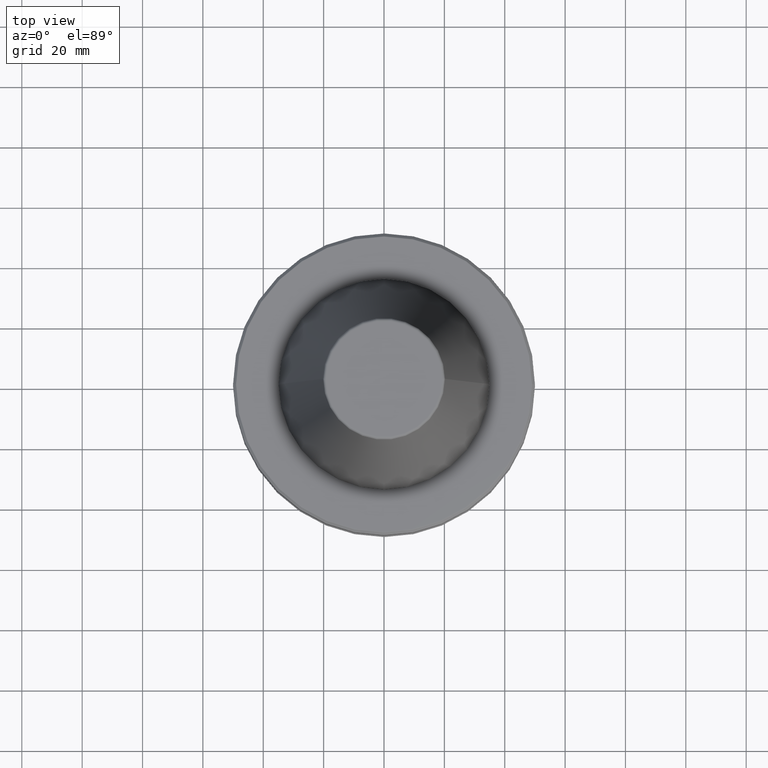
[diagram: clean part render]
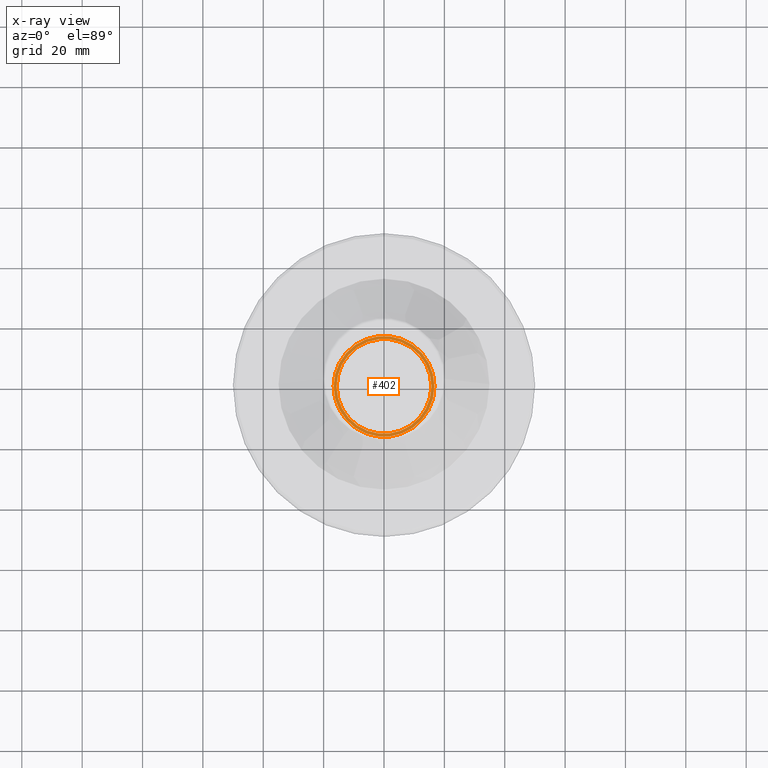
[diagram: x-ray — body ghosted, one internal face saturated and labeled with its STEP entity id]
A machine part, top view, then the same camera in x-ray: the body is ghosted and one INTERNAL B-rep face — a face not visible from any outside direction — is saturated and labeled: STEP entity #402.
In plain terms, the highlighted planar face has unit normal (0, 0, 1).
Its self-contained STEP definition (entity closure, byte-faithful):
#40 = DIRECTION ( 'NONE',  ( -0.0000000000000000000, -0.0000000000000000000, -1.000000000000000000 ) ) ;
#42 = CIRCLE ( 'NONE', #872, 15.69999999999982500 ) ;
#99 = VERTEX_POINT ( 'NONE', #1537 ) ;
#141 = DIRECTION ( 'NONE',  ( -0.0000000000000000000, -0.0000000000000000000, -1.000000000000000000 ) ) ;
#157 = DIRECTION ( 'NONE',  ( 1.000000000000000000, 0.0000000000000000000, -0.0000000000000000000 ) ) ;
#264 = DIRECTION ( 'NONE',  ( -0.0000000000000000000, -0.0000000000000000000, -1.000000000000000000 ) ) ;
#402 = ADVANCED_FACE ( 'NONE', ( #1764, #1727 ), #1296, .F. ) ;
#422 = CARTESIAN_POINT ( 'NONE',  ( 0.0000000000000000000, 0.0000000000000000000, -43.39999999999809400 ) ) ;
#429 = ORIENTED_EDGE ( 'NONE', *, *, #929, .F. ) ;
#507 = DIRECTION ( 'NONE',  ( -0.0000000000000000000, -0.0000000000000000000, -1.000000000000000000 ) ) ;
#625 = CIRCLE ( 'NONE', #1994, 15.69999999999982500 ) ;
#748 = EDGE_LOOP ( 'NONE', ( #756, #880 ) ) ;
#756 = ORIENTED_EDGE ( 'NONE', *, *, #1255, .T. ) ;
#848 = VERTEX_POINT ( 'NONE', #1935 ) ;
#872 = AXIS2_PLACEMENT_3D ( 'NONE', #1010, #40, #1180 ) ;
#880 = ORIENTED_EDGE ( 'NONE', *, *, #1420, .T. ) ;
#929 = EDGE_CURVE ( 'NONE', #1216, #1282, #625, .T. ) ;
#1010 = CARTESIAN_POINT ( 'NONE',  ( 0.0000000000000000000, 0.0000000000000000000, -43.39999999999809400 ) ) ;
#1044 = ORIENTED_EDGE ( 'NONE', *, *, #1196, .F. ) ;
#1119 = CARTESIAN_POINT ( 'NONE',  ( 0.0000000000000000000, 0.0000000000000000000, -43.39999999999809400 ) ) ;
#1126 = EDGE_LOOP ( 'NONE', ( #429, #1044 ) ) ;
#1180 = DIRECTION ( 'NONE',  ( -1.000000000000000000, 0.0000000000000000000, 0.0000000000000000000 ) ) ;
#1196 = EDGE_CURVE ( 'NONE', #1282, #1216, #42, .T. ) ;
#1216 = VERTEX_POINT ( 'NONE', #1353 ) ;
#1237 = CARTESIAN_POINT ( 'NONE',  ( 0.0000000000000000000, 0.0000000000000000000, -43.39999999999809400 ) ) ;
#1255 = EDGE_CURVE ( 'NONE', #848, #99, #2053, .T. ) ;
#1266 = AXIS2_PLACEMENT_3D ( 'NONE', #1480, #2145, #157 ) ;
#1282 = VERTEX_POINT ( 'NONE', #1940 ) ;
#1286 = DIRECTION ( 'NONE',  ( -1.000000000000000000, 0.0000000000000000000, 0.0000000000000000000 ) ) ;
#1296 = PLANE ( 'NONE',  #1266 ) ;
#1353 = CARTESIAN_POINT ( 'NONE',  ( -15.69999999999982500, 0.0000000000000000000, -43.39999999999809400 ) ) ;
#1416 = DIRECTION ( 'NONE',  ( -1.000000000000000000, 0.0000000000000000000, 0.0000000000000000000 ) ) ;
#1420 = EDGE_CURVE ( 'NONE', #99, #848, #1728, .T. ) ;
#1446 = DIRECTION ( 'NONE',  ( -1.000000000000000000, 0.0000000000000000000, 0.0000000000000000000 ) ) ;
#1480 = CARTESIAN_POINT ( 'NONE',  ( 0.0000000000000000000, 0.0000000000000000000, -43.39999999999809400 ) ) ;
#1537 = CARTESIAN_POINT ( 'NONE',  ( -16.70000000000072000, 2.063529856562913600E-015, -43.39999999999809400 ) ) ;
#1632 = AXIS2_PLACEMENT_3D ( 'NONE', #422, #507, #1446 ) ;
#1727 = FACE_OUTER_BOUND ( 'NONE', #748, .T. ) ;
#1728 = CIRCLE ( 'NONE', #1632, 16.70000000000072000 ) ;
#1764 = FACE_BOUND ( 'NONE', #1126, .T. ) ;
#1911 = AXIS2_PLACEMENT_3D ( 'NONE', #1237, #264, #1416 ) ;
#1935 = CARTESIAN_POINT ( 'NONE',  ( 16.70000000000072000, 0.0000000000000000000, -43.39999999999809400 ) ) ;
#1940 = CARTESIAN_POINT ( 'NONE',  ( 15.69999999999982500, 1.922695474661323400E-015, -43.39999999999809400 ) ) ;
#1994 = AXIS2_PLACEMENT_3D ( 'NONE', #1119, #141, #1286 ) ;
#2053 = CIRCLE ( 'NONE', #1911, 16.70000000000072000 ) ;
#2145 = DIRECTION ( 'NONE',  ( 0.0000000000000000000, 0.0000000000000000000, 1.000000000000000000 ) ) ;